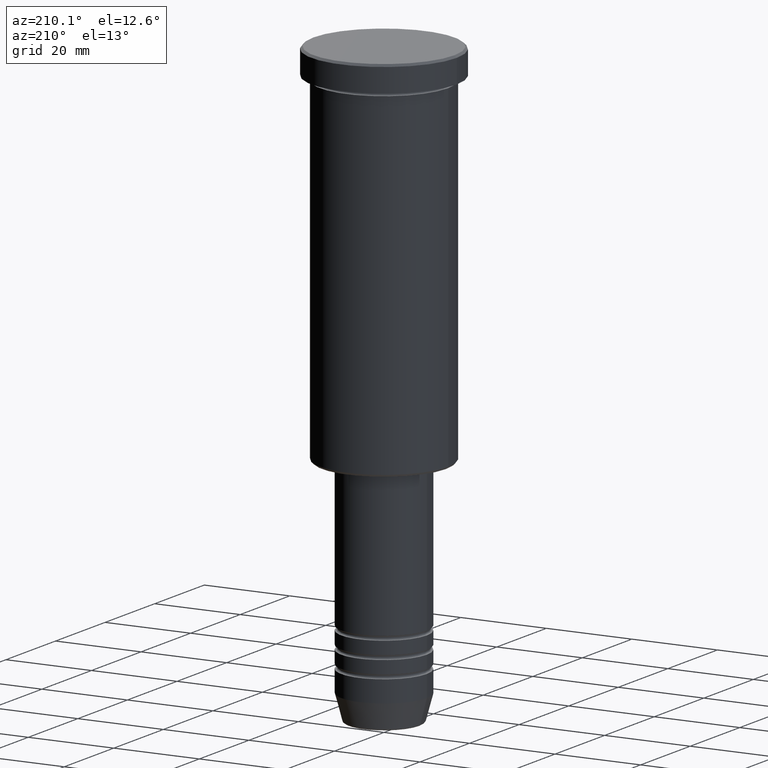
[diagram: clean part render]
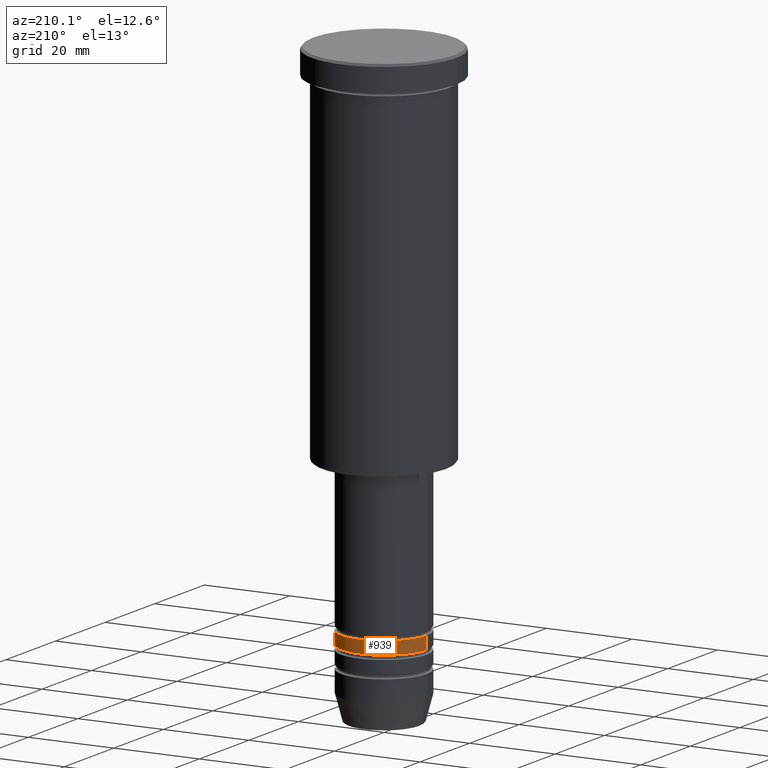
[diagram: same view with one face highlighted and labeled with its STEP entity id]
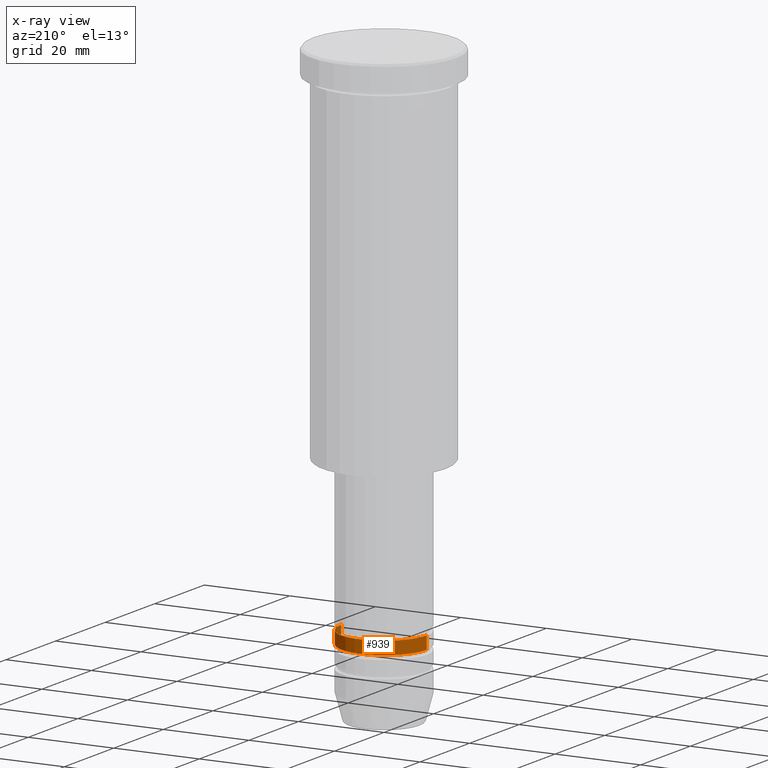
[diagram: x-ray of the same camera — body ghosted, the highlighted face saturated]
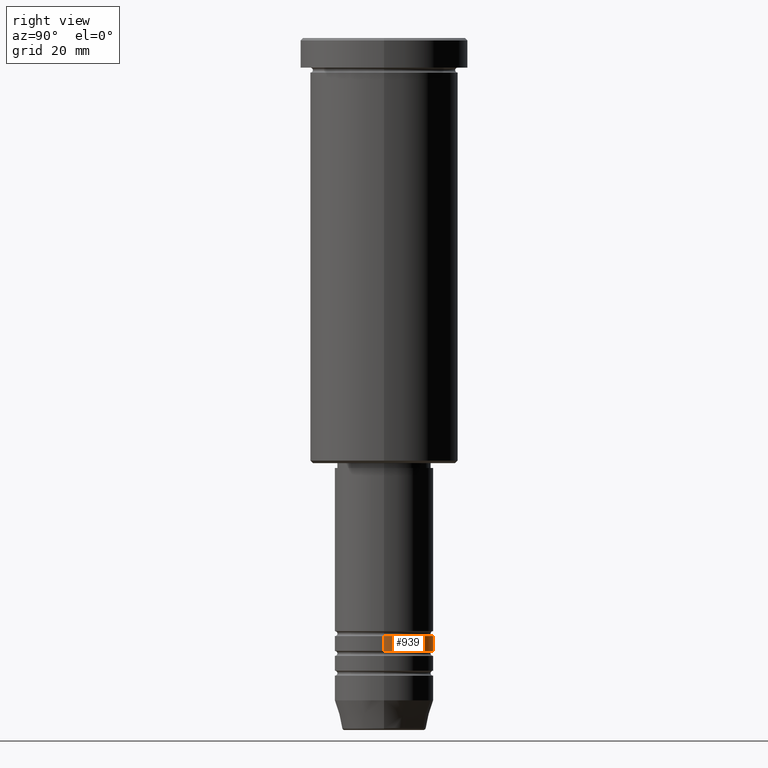
[diagram: same view with one face highlighted and labeled with its STEP entity id]
A machine part, auxiliary view. The second image highlights one B-rep face of the part: STEP entity #939.
The next image is the same camera in x-ray: the body ghosted, the highlighted face saturated — about 0% of this face is hidden behind the body in this view.
A second angle (right view) of the same face is appended — the face is thin or edge-on in the first view.
In plain terms, the highlighted cylindrical surface (partial cylindrical patch) has radius 10 mm, axis along (-0, -0, 1).
Its self-contained STEP definition (entity closure, byte-faithful):
#77 = DIRECTION ( 'NONE',  ( -0.000000000000000000, -0.000000000000000000, 1.000000000000000000 ) ) ;
#92 = DIRECTION ( 'NONE',  ( 1.000000000000000000, 0.000000000000000000, 0.000000000000000000 ) ) ;
#196 = LINE ( 'NONE', #277, #561 ) ;
#202 = DIRECTION ( 'NONE',  ( -0.000000000000000000, -0.000000000000000000, 1.000000000000000000 ) ) ;
#223 = VERTEX_POINT ( 'NONE', #781 ) ;
#277 = CARTESIAN_POINT ( 'NONE',  ( 10.00000000000000178, 0.000000000000000000, 0.000000000000000000 ) ) ;
#383 = VERTEX_POINT ( 'NONE', #566 ) ;
#413 = FACE_OUTER_BOUND ( 'NONE', #777, .T. ) ;
#419 = ORIENTED_EDGE ( 'NONE', *, *, #1011, .T. ) ;
#426 = CARTESIAN_POINT ( 'NONE',  ( 0.000000000000000000, 0.000000000000000000, 0.000000000000000000 ) ) ;
#435 = VERTEX_POINT ( 'NONE', #692 ) ;
#441 = DIRECTION ( 'NONE',  ( 1.000000000000000000, 0.000000000000000000, 0.000000000000000000 ) ) ;
#495 = ORIENTED_EDGE ( 'NONE', *, *, #838, .F. ) ;
#533 = CARTESIAN_POINT ( 'NONE',  ( 0.000000000000000000, 0.000000000000000000, -121.0000000000000000 ) ) ;
#561 = VECTOR ( 'NONE', #202, 1000.000000000000000 ) ;
#566 = CARTESIAN_POINT ( 'NONE',  ( -10.00000000000000178, 1.224646799147353454E-15, -124.0000000000000000 ) ) ;
#690 = ORIENTED_EDGE ( 'NONE', *, *, #1023, .F. ) ;
#692 = CARTESIAN_POINT ( 'NONE',  ( 10.00000000000000000, 0.000000000000000000, -121.0000000000000000 ) ) ;
#724 = AXIS2_PLACEMENT_3D ( 'NONE', #533, #911, #441 ) ;
#733 = DIRECTION ( 'NONE',  ( -0.000000000000000000, -0.000000000000000000, 1.000000000000000000 ) ) ;
#777 = EDGE_LOOP ( 'NONE', ( #419, #1136, #495, #690 ) ) ;
#781 = CARTESIAN_POINT ( 'NONE',  ( 10.00000000000000178, 0.000000000000000000, -124.0000000000000000 ) ) ;
#802 = EDGE_CURVE ( 'NONE', #383, #1096, #901, .T. ) ;
#809 = CARTESIAN_POINT ( 'NONE',  ( -10.00000000000000178, 1.224646799147353454E-15, 0.000000000000000000 ) ) ;
#825 = AXIS2_PLACEMENT_3D ( 'NONE', #426, #77, #888 ) ;
#838 = EDGE_CURVE ( 'NONE', #435, #1096, #920, .T. ) ;
#888 = DIRECTION ( 'NONE',  ( 1.000000000000000000, 0.000000000000000000, 0.000000000000000000 ) ) ;
#892 = CYLINDRICAL_SURFACE ( 'NONE', #825, 10.00000000000000178 ) ;
#901 = LINE ( 'NONE', #809, #1046 ) ;
#911 = DIRECTION ( 'NONE',  ( -0.000000000000000000, -0.000000000000000000, 1.000000000000000000 ) ) ;
#916 = DIRECTION ( 'NONE',  ( -0.000000000000000000, -0.000000000000000000, 1.000000000000000000 ) ) ;
#920 = CIRCLE ( 'NONE', #724, 10.00000000000000000 ) ;
#922 = CARTESIAN_POINT ( 'NONE',  ( -10.00000000000000000, 1.224646799147353256E-15, -121.0000000000000000 ) ) ;
#939 = ADVANCED_FACE ( 'NONE', ( #413 ), #892, .T. ) ;
#953 = CIRCLE ( 'NONE', #977, 10.00000000000000178 ) ;
#977 = AXIS2_PLACEMENT_3D ( 'NONE', #1102, #916, #92 ) ;
#1011 = EDGE_CURVE ( 'NONE', #223, #383, #953, .T. ) ;
#1023 = EDGE_CURVE ( 'NONE', #223, #435, #196, .T. ) ;
#1046 = VECTOR ( 'NONE', #733, 1000.000000000000000 ) ;
#1096 = VERTEX_POINT ( 'NONE', #922 ) ;
#1102 = CARTESIAN_POINT ( 'NONE',  ( 0.000000000000000000, 0.000000000000000000, -124.0000000000000000 ) ) ;
#1136 = ORIENTED_EDGE ( 'NONE', *, *, #802, .T. ) ;